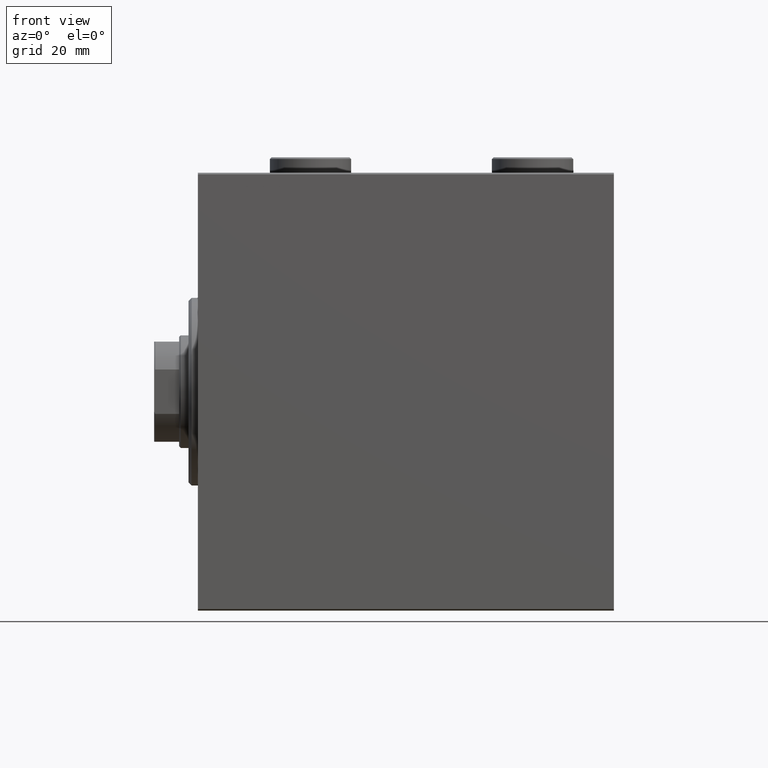
[diagram: clean part render]
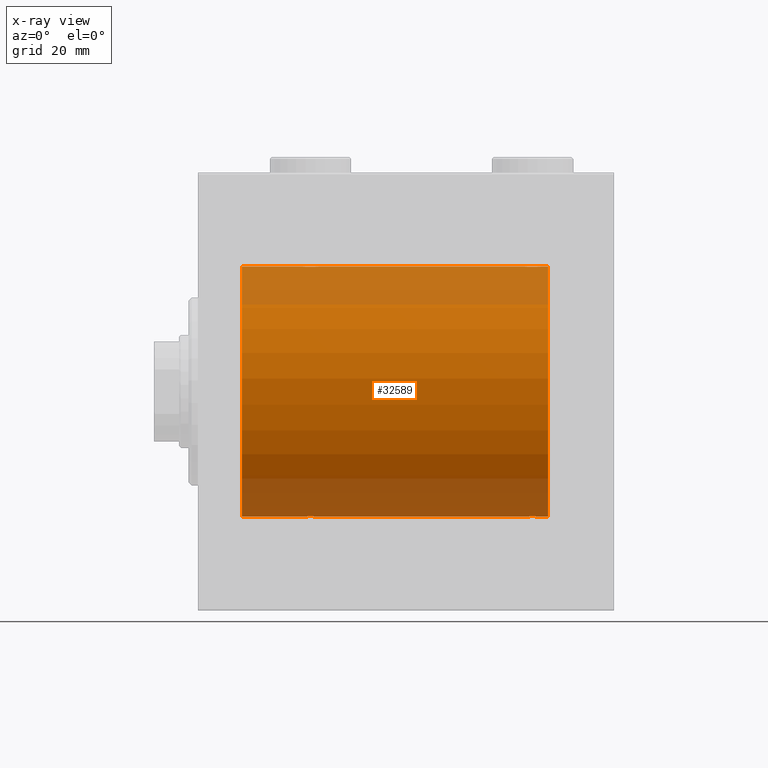
[diagram: x-ray — body ghosted, one internal face saturated and labeled with its STEP entity id]
A machine part, front view, then the same camera in x-ray: the body is ghosted and one INTERNAL B-rep face — a face not visible from any outside direction — is saturated and labeled: STEP entity #32589.
In plain terms, the highlighted cylindrical surface (partial cylindrical patch) has radius 40 mm, axis along (-1, -0, -0).
Its self-contained STEP definition (entity closure, byte-faithful):
#83 = CARTESIAN_POINT ( 'NONE',  ( 107.3952248345357816, -2.980272303779556431, -39.88883864243169342 ) ) ;
#178 = VECTOR ( 'NONE', #28271, 1000.000000000000000 ) ;
#187 = CARTESIAN_POINT ( 'NONE',  ( 35.79958713980801832, -2.999840380514748883, 39.88735335562824247 ) ) ;
#273 = VERTEX_POINT ( 'NONE', #11711 ) ;
#306 = CARTESIAN_POINT ( 'NONE',  ( 105.1730981536758804, -2.387636253591827185, -39.92882473497732576 ) ) ;
#407 = CARTESIAN_POINT ( 'NONE',  ( 34.01538552187719233, -2.258217541132905293, 39.93644519243653690 ) ) ;
#811 = CARTESIAN_POINT ( 'NONE',  ( 33.61748319088535908, -1.833695109615714802, -39.95828327492363741 ) ) ;
#907 = ORIENTED_EDGE ( 'NONE', *, *, #32072, .T. ) ;
#1038 = CARTESIAN_POINT ( 'NONE',  ( 112.0000000000000000, 0.000000000000000000, 40.00000000000000000 ) ) ;
#1043 = CARTESIAN_POINT ( 'NONE',  ( 33.39811271871507614, -1.506322235190781456, -39.97196309111974699 ) ) ;
#1135 = CARTESIAN_POINT ( 'NONE',  ( 39.00000000000000000, 4.898587181755365697E-15, -40.00000000000000000 ) ) ;
#1503 = CARTESIAN_POINT ( 'NONE',  ( 38.84665273013138176, -0.9668189122103333366, -39.98872185468385254 ) ) ;
#1559 = CARTESIAN_POINT ( 'NONE',  ( 38.92026174991646315, -0.7903958539027399199, 39.99381900068935636 ) ) ;
#1792 = CARTESIAN_POINT ( 'NONE',  ( 38.60188728128492386, -1.506322235190783232, 39.97196309111974699 ) ) ;
#1964 = CARTESIAN_POINT ( 'NONE',  ( 109.6043359991208206, -1.502129635934005503, -39.97212271185185983 ) ) ;
#2068 = VECTOR ( 'NONE', #15136, 1000.000000000000000 ) ;
#2075 = CARTESIAN_POINT ( 'NONE',  ( 112.0000000000000000, 4.898587196589413026E-15, -40.00000000000000000 ) ) ;
#2087 = VERTEX_POINT ( 'NONE', #44082 ) ;
#2292 = CARTESIAN_POINT ( 'NONE',  ( 109.2582967032050192, -1.984537326394317569, 39.95097977400578060 ) ) ;
#2517 = CARTESIAN_POINT ( 'NONE',  ( 105.6677573113413615, -2.695129988695747603, 39.90917164320281785 ) ) ;
#2738 = CARTESIAN_POINT ( 'NONE',  ( 105.1695517717759998, -2.384933850258125876, 39.92898715513240404 ) ) ;
#3073 = DIRECTION ( 'NONE',  ( -1.000000000000000000, -0.000000000000000000, -0.000000000000000000 ) ) ;
#3286 = DIRECTION ( 'NONE',  ( -1.000000000000000000, -0.000000000000000000, -0.000000000000000000 ) ) ;
#3298 = CARTESIAN_POINT ( 'NONE',  ( 112.0000000000000000, 0.000000000000000000, 40.00000000000000000 ) ) ;
#3664 = CARTESIAN_POINT ( 'NONE',  ( 35.03061658105535514, -2.845855236045346626, 39.89870693240651889 ) ) ;
#3787 = CARTESIAN_POINT ( 'NONE',  ( 107.7786952341574249, -2.903766417398243149, -39.89448096967571189 ) ) ;
#4013 = CARTESIAN_POINT ( 'NONE',  ( 107.9693834189446733, -2.845855236045348402, -39.89870693240651889 ) ) ;
#4287 = CARTESIAN_POINT ( 'NONE',  ( 37.50443082913466242, -2.602909538701748016, -39.91537030566259148 ) ) ;
#4339 = CARTESIAN_POINT ( 'NONE',  ( 37.32853644746295885, -2.696981015661930936, 39.90904630908465833 ) ) ;
#4407 = CARTESIAN_POINT ( 'NONE',  ( 39.00000000000000000, -1.886242593979369380E-15, 40.00000000000000000 ) ) ;
#4531 = CARTESIAN_POINT ( 'NONE',  ( 36.77869523415743913, -2.903766417398228938, -39.89448096967571900 ) ) ;
#4760 = CARTESIAN_POINT ( 'NONE',  ( 32.99999999999998579, -0.3964922677423637909, -39.99999999999998579 ) ) ;
#4809 = CARTESIAN_POINT ( 'NONE',  ( 39.00000000000000000, -1.886242593979369380E-15, 40.00000000000000000 ) ) ;
#4981 = CARTESIAN_POINT ( 'NONE',  ( 33.74170329679496660, -1.984537326394300250, -39.95097977400577349 ) ) ;
#5457 = CARTESIAN_POINT ( 'NONE',  ( 109.9042517365135438, -0.7773146824711011371, -39.99291453282344122 ) ) ;
#5510 = CARTESIAN_POINT ( 'NONE',  ( 38.69537007708435539, -1.331594428131646080, 39.97823692017209396 ) ) ;
#5609 = EDGE_CURVE ( 'NONE', #2087, #17321, #43744, .T. ) ;
#5762 = CARTESIAN_POINT ( 'NONE',  ( 104.0000000000000142, -1.483492375313373751E-23, 40.00000000000000000 ) ) ;
#6063 = DIRECTION ( 'NONE',  ( -1.000000000000000000, 0.000000000000000000, 0.000000000000000000 ) ) ;
#6223 = CARTESIAN_POINT ( 'NONE',  ( 106.0306165810553409, -2.845855236045354619, 39.89870693240651178 ) ) ;
#6345 = EDGE_CURVE ( 'NONE', #273, #8951, #30739, .T. ) ;
#6440 = CARTESIAN_POINT ( 'NONE',  ( 104.0957482634864846, -0.7773146824711071323, 39.99291453282344833 ) ) ;
#6624 = VERTEX_POINT ( 'NONE', #34378 ) ;
#6810 = CARTESIAN_POINT ( 'NONE',  ( 108.3322426886586669, -2.695129988695742718, -39.90917164320281074 ) ) ;
#7030 = CARTESIAN_POINT ( 'NONE',  ( 105.4991153159596564, -2.604941918888321606, -39.91523680494982784 ) ) ;
#7250 = CARTESIAN_POINT ( 'NONE',  ( 108.9846144781227935, -2.258217541132901296, -39.93644519243653690 ) ) ;
#7358 = CARTESIAN_POINT ( 'NONE',  ( 33.01898122889073051, -0.3904143323715975056, 39.99856256910221219 ) ) ;
#7985 = CARTESIAN_POINT ( 'NONE',  ( 37.83044822822401443, -2.384933850258100119, -39.92898715513241115 ) ) ;
#8951 = VERTEX_POINT ( 'NONE', #27532 ) ;
#8982 = CARTESIAN_POINT ( 'NONE',  ( 38.99999999999999289, -0.3964922677423670661, 40.00000000000000711 ) ) ;
#9017 = CARTESIAN_POINT ( 'NONE',  ( 108.8269018463241053, -2.387636253591832514, 39.92882473497732576 ) ) ;
#9455 = CARTESIAN_POINT ( 'NONE',  ( 104.0000000000000142, -0.1957844162750575212, 39.99999999999999289 ) ) ;
#9555 = B_SPLINE_CURVE_WITH_KNOTS ( 'NONE', 3,
 ( #35934, #40556, #33173, #39856, #1503, #32714, #29944, #29705, #25989, #11916, #7985, #4287, #15364, #43090, #4531, #22304, #29235, #43550, #36404, #25755, #12371, #22074, #15604, #18608, #26455, #4981, #811, #1043, #36168, #15139, #4760, #43786 ),
 .UNSPECIFIED., .F., .F.,
 ( 4, 2, 2, 2, 2, 2, 2, 2, 2, 2, 2, 2, 2, 2, 2, 4 ),
 ( 0.009382660366305110508, 0.009968941372944146312, 0.01055522237958318212, 0.01114150338622221792, 0.01172778439286125372, 0.01231406539950028953, 0.01290034640613932533, 0.01348662741277836113, 0.01407290841941739694, 0.01465918942605643274, 0.01524547043269546855, 0.01583175143933450435, 0.01641803244597354189, 0.01700431345261257596, 0.01759059445925161003, 0.01876315647252968163 ),
 .UNSPECIFIED. ) ;
#9684 = CARTESIAN_POINT ( 'NONE',  ( 109.6018872812849310, -1.506322235190793668, 39.97196309111975410 ) ) ;
#9916 = CARTESIAN_POINT ( 'NONE',  ( 109.9202617499164916, -0.7903958539027468033, 39.99381900068937057 ) ) ;
#10269 = CARTESIAN_POINT ( 'NONE',  ( 104.3981127187150690, -1.506322235190790559, -39.97196309111975410 ) ) ;
#10838 = B_SPLINE_CURVE_WITH_KNOTS ( 'NONE', 3,
 ( #5762, #9455, #37862, #6440, #27229, #44787, #40650, #33717, #23531, #27459, #2738, #37630, #2517, #6223, #12462, #26553, #16604, #37190, #16823, #41313, #16142, #30262, #41544, #9017, #19840, #2292, #30497, #9684, #20295, #9916, #23988, #20514 ),
 .UNSPECIFIED., .F., .F.,
 ( 4, 2, 2, 2, 2, 2, 2, 2, 2, 2, 2, 2, 2, 2, 2, 4 ),
 ( 0.009382660366305098365, 0.009968941372944135904, 0.01055522237958317344, 0.01114150338622220925, 0.01172778439286124678, 0.01231406539950028432, 0.01290034640613932013, 0.01348662741277835767, 0.01407290841941739520, 0.01465918942605643274, 0.01524547043269547028, 0.01583175143933450435, 0.01641803244597354189, 0.01700431345261257943, 0.01759059445925161697, 0.01876315647252969204 ),
 .UNSPECIFIED. ) ;
#11050 = CARTESIAN_POINT ( 'NONE',  ( 34.16955177177597847, -2.384933850258108556, 39.92898715513240404 ) ) ;
#11280 = CARTESIAN_POINT ( 'NONE',  ( 32.99999999999997158, -0.1957844162750553285, 40.00000000000000000 ) ) ;
#11585 = ORIENTED_EDGE ( 'NONE', *, *, #12822, .F. ) ;
#11711 = CARTESIAN_POINT ( 'NONE',  ( 112.0000000000000000, 4.898587196589413026E-15, -40.00000000000000000 ) ) ;
#11857 = CARTESIAN_POINT ( 'NONE',  ( 112.0000000000000000, 0.000000000000000000, 40.00000000000000000 ) ) ;
#11913 = LINE ( 'NONE', #1038, #2068 ) ;
#11916 = CARTESIAN_POINT ( 'NONE',  ( 37.98461447812278635, -2.258217541132897743, -39.93644519243654400 ) ) ;
#12242 = ORIENTED_EDGE ( 'NONE', *, *, #31346, .T. ) ;
#12371 = CARTESIAN_POINT ( 'NONE',  ( 35.03510674146484405, -2.847401743820449305, -39.89859630624607689 ) ) ;
#12462 = CARTESIAN_POINT ( 'NONE',  ( 106.2213047658425893, -2.903766417398247590, 39.89448096967571189 ) ) ;
#12822 = EDGE_CURVE ( 'NONE', #2087, #33935, #24311, .T. ) ;
#12884 = LINE ( 'NONE', #30685, #32042 ) ;
#13266 = CARTESIAN_POINT ( 'NONE',  ( 110.0000000000000142, 4.898587181754971267E-15, -40.00000000000000000 ) ) ;
#13414 = VECTOR ( 'NONE', #33040, 1000.000000000000000 ) ;
#13945 = CARTESIAN_POINT ( 'NONE',  ( 108.8304482282240144, -2.384933850258110777, -39.92898715513239694 ) ) ;
#14353 = CARTESIAN_POINT ( 'NONE',  ( 112.0000000000000000, 0.000000000000000000, 0.000000000000000000 ) ) ;
#14501 = CARTESIAN_POINT ( 'NONE',  ( 37.50088468404035069, -2.604941918888315833, 39.91523680494983495 ) ) ;
#15136 = DIRECTION ( 'NONE',  ( -1.000000000000000000, -0.000000000000000000, -0.000000000000000000 ) ) ;
#15139 = CARTESIAN_POINT ( 'NONE',  ( 33.07973825008353685, -0.7903958539027382546, -39.99381900068937767 ) ) ;
#15339 = CARTESIAN_POINT ( 'NONE',  ( 112.0000000000000000, 0.000000000000000000, 0.000000000000000000 ) ) ;
#15364 = CARTESIAN_POINT ( 'NONE',  ( 37.33224268865864559, -2.695129988695729839, -39.90917164320280364 ) ) ;
#15417 = CARTESIAN_POINT ( 'NONE',  ( 38.38251680911464803, -1.833695109615719021, 39.95828327492363741 ) ) ;
#15573 = EDGE_CURVE ( 'NONE', #24918, #33935, #34536, .T. ) ;
#15604 = CARTESIAN_POINT ( 'NONE',  ( 34.49911531595966352, -2.604941918888306507, -39.91523680494982784 ) ) ;
#15757 = VERTEX_POINT ( 'NONE', #1135 ) ;
#15900 = ORIENTED_EDGE ( 'NONE', *, *, #30459, .F. ) ;
#16053 = CARTESIAN_POINT ( 'NONE',  ( 109.3850760091535363, -1.830402106103518944, -39.95843610133493939 ) ) ;
#16142 = CARTESIAN_POINT ( 'NONE',  ( 107.9648932585351417, -2.847401743820471065, 39.89859630624608400 ) ) ;
#16604 = CARTESIAN_POINT ( 'NONE',  ( 106.7995871398080254, -2.999840380514755100, 39.88735335562824957 ) ) ;
#16756 = ORIENTED_EDGE ( 'NONE', *, *, #41079, .T. ) ;
#16823 = CARTESIAN_POINT ( 'NONE',  ( 107.3910969250933505, -2.980812880639910123, 39.88879797994688658 ) ) ;
#17199 = CARTESIAN_POINT ( 'NONE',  ( 106.0351067414648867, -2.847401743820467512, -39.89859630624608400 ) ) ;
#17321 = VERTEX_POINT ( 'NONE', #4407 ) ;
#17640 = CARTESIAN_POINT ( 'NONE',  ( 104.7417032967950377, -1.984537326394312906, -39.95097977400579481 ) ) ;
#17753 = CARTESIAN_POINT ( 'NONE',  ( 35.22130476584258219, -2.903766417398241373, 39.89448096967571189 ) ) ;
#17978 = CARTESIAN_POINT ( 'NONE',  ( 36.77455678826341057, -2.904869018727228358, 39.89440043036668015 ) ) ;
#18608 = CARTESIAN_POINT ( 'NONE',  ( 34.17309815367588754, -2.387636253591812974, -39.92882473497732576 ) ) ;
#19205 = VECTOR ( 'NONE', #23560, 1000.000000000000000 ) ;
#19535 = CARTESIAN_POINT ( 'NONE',  ( 109.6972134058088670, -1.327859336864152029, -39.97836169682016561 ) ) ;
#19562 = VERTEX_POINT ( 'NONE', #11857 ) ;
#19669 = VERTEX_POINT ( 'NONE', #39734 ) ;
#19840 = CARTESIAN_POINT ( 'NONE',  ( 108.9813627951423456, -2.261082456166716881, 39.93628274425758207 ) ) ;
#20131 = CARTESIAN_POINT ( 'NONE',  ( 13.99999999999999822, 0.000000000000000000, 0.000000000000000000 ) ) ;
#20295 = CARTESIAN_POINT ( 'NONE',  ( 109.6953700770843767, -1.331594428131652963, 39.97823692017208685 ) ) ;
#20376 = EDGE_CURVE ( 'NONE', #45079, #17321, #11913, .T. ) ;
#20514 = CARTESIAN_POINT ( 'NONE',  ( 110.0000000000000142, -2.794909241144302331E-15, 40.00000000000000000 ) ) ;
#20525 = VERTEX_POINT ( 'NONE', #29648 ) ;
#20886 = CARTESIAN_POINT ( 'NONE',  ( 104.6174831908853804, -1.833695109615725238, -39.95828327492363741 ) ) ;
#21103 = CARTESIAN_POINT ( 'NONE',  ( 112.0000000000000000, 4.898587196589413026E-15, -40.00000000000000000 ) ) ;
#21334 = CARTESIAN_POINT ( 'NONE',  ( 108.5044308291346908, -2.602909538701760006, -39.91537030566259148 ) ) ;
#21442 = CARTESIAN_POINT ( 'NONE',  ( 36.19560531073086196, -3.000157693440645090, 39.88732948994960026 ) ) ;
#21582 = ORIENTED_EDGE ( 'NONE', *, *, #38213, .T. ) ;
#21677 = CARTESIAN_POINT ( 'NONE',  ( 34.66775731134134020, -2.695129988695739609, 39.90917164320281074 ) ) ;
#22074 = CARTESIAN_POINT ( 'NONE',  ( 34.67146355253704826, -2.696981015661917613, -39.90904630908468675 ) ) ;
#22236 = ORIENTED_EDGE ( 'NONE', *, *, #20376, .F. ) ;
#22304 = CARTESIAN_POINT ( 'NONE',  ( 36.39522483453576029, -2.980272303779541332, -39.88883864243169342 ) ) ;
#22715 = AXIS2_PLACEMENT_3D ( 'NONE', #20131, #23600, #45080 ) ;
#23531 = CARTESIAN_POINT ( 'NONE',  ( 104.7390238300526022, -1.981471132463181295, 39.95113231465138881 ) ) ;
#23560 = DIRECTION ( 'NONE',  ( -1.000000000000000000, -0.000000000000000000, -0.000000000000000000 ) ) ;
#23600 = DIRECTION ( 'NONE',  ( -1.000000000000000000, 0.000000000000000000, 0.000000000000000000 ) ) ;
#23831 = EDGE_CURVE ( 'NONE', #273, #19562, #29474, .T. ) ;
#23988 = CARTESIAN_POINT ( 'NONE',  ( 110.0000000000000000, -0.3964922677423690645, 40.00000000000000000 ) ) ;
#24117 = CARTESIAN_POINT ( 'NONE',  ( 106.6089030749067064, -2.980812880639904794, -39.88879797994688658 ) ) ;
#24311 = LINE ( 'NONE', #3298, #25145 ) ;
#24413 = ORIENTED_EDGE ( 'NONE', *, *, #5609, .T. ) ;
#24875 = CARTESIAN_POINT ( 'NONE',  ( 104.0000000000000142, -1.483492375313373751E-23, 40.00000000000000000 ) ) ;
#24918 = VERTEX_POINT ( 'NONE', #32635 ) ;
#25145 = VECTOR ( 'NONE', #3073, 1000.000000000000000 ) ;
#25362 = CARTESIAN_POINT ( 'NONE',  ( 33.09574826348647036, -0.7773146824711031355, 39.99291453282343412 ) ) ;
#25755 = CARTESIAN_POINT ( 'NONE',  ( 35.22544321173658943, -2.904869018727217700, -39.89440043036668726 ) ) ;
#25782 = ORIENTED_EDGE ( 'NONE', *, *, #32257, .T. ) ;
#25808 = CARTESIAN_POINT ( 'NONE',  ( 33.61492399084646365, -1.830402106103518056, 39.95843610133494650 ) ) ;
#25989 = CARTESIAN_POINT ( 'NONE',  ( 38.26097616994740491, -1.981471132463162643, -39.95113231465139592 ) ) ;
#26455 = CARTESIAN_POINT ( 'NONE',  ( 34.01863720485770415, -2.261082456166700005, -39.93628274425758917 ) ) ;
#26553 = CARTESIAN_POINT ( 'NONE',  ( 106.6047751654642468, -2.980272303779561316, 39.88883864243167920 ) ) ;
#27229 = CARTESIAN_POINT ( 'NONE',  ( 104.1533472698686182, -0.9668189122103458821, 39.98872185468384544 ) ) ;
#27373 = CARTESIAN_POINT ( 'NONE',  ( 109.8466527301314102, -0.9668189122103407751, -39.98872185468385254 ) ) ;
#27459 = CARTESIAN_POINT ( 'NONE',  ( 105.0153855218772065, -2.258217541132916395, 39.93644519243652979 ) ) ;
#27532 = CARTESIAN_POINT ( 'NONE',  ( 110.0000000000000142, 4.898587181754971267E-15, -40.00000000000000000 ) ) ;
#27817 = CARTESIAN_POINT ( 'NONE',  ( 106.8043946892691736, -3.000157693440646867, -39.88732948994960736 ) ) ;
#28271 = DIRECTION ( 'NONE',  ( -1.000000000000000000, -0.000000000000000000, -0.000000000000000000 ) ) ;
#28590 = CARTESIAN_POINT ( 'NONE',  ( 37.82690184632411956, -2.387636253591820523, 39.92882473497731866 ) ) ;
#29104 = EDGE_LOOP ( 'NONE', ( #45083, #42651, #25782, #16756, #907, #12242, #42837, #11585, #24413, #22236, #21582, #15900 ) ) ;
#29235 = CARTESIAN_POINT ( 'NONE',  ( 36.20041286019198168, -2.999840380514735116, -39.88735335562824957 ) ) ;
#29285 = CARTESIAN_POINT ( 'NONE',  ( 33.30278659419118270, -1.327859336864149586, 39.97836169682017982 ) ) ;
#29474 = CIRCLE ( 'NONE', #35379, 40.00000000000000000 ) ;
#29648 = CARTESIAN_POINT ( 'NONE',  ( 110.0000000000000142, -2.794909241144302331E-15, 40.00000000000000000 ) ) ;
#29705 = CARTESIAN_POINT ( 'NONE',  ( 38.38507600915353635, -1.830402106103512505, -39.95843610133493229 ) ) ;
#29944 = CARTESIAN_POINT ( 'NONE',  ( 38.60433599912083480, -1.502129635934000396, -39.97212271185185273 ) ) ;
#29994 = CARTESIAN_POINT ( 'NONE',  ( 38.25829670320501918, -1.984537326394312462, 39.95097977400578060 ) ) ;
#30262 = CARTESIAN_POINT ( 'NONE',  ( 108.3285364474629660, -2.696981015661940262, 39.90904630908467254 ) ) ;
#30459 = EDGE_CURVE ( 'NONE', #19562, #20525, #36275, .T. ) ;
#30497 = CARTESIAN_POINT ( 'NONE',  ( 109.3825168091146622, -1.833695109615728125, 39.95828327492363741 ) ) ;
#30685 = CARTESIAN_POINT ( 'NONE',  ( 112.0000000000000000, 4.898587196589413026E-15, -40.00000000000000000 ) ) ;
#30739 = LINE ( 'NONE', #2075, #19205 ) ;
#30840 = CARTESIAN_POINT ( 'NONE',  ( 109.9810187711092908, -0.3904143323715949521, -39.99856256910221219 ) ) ;
#31083 = B_SPLINE_CURVE_WITH_KNOTS ( 'NONE', 3,
 ( #13266, #37097, #30840, #5457, #27373, #19535, #1964, #16053, #44478, #7250, #13945, #21334, #6810, #4013, #3787, #83, #31755, #27817, #24117, #35208, #17199, #31311, #7030, #306, #45379, #17640, #20886, #10269, #41896, #35433, #38448, #32197 ),
 .UNSPECIFIED., .F., .F.,
 ( 4, 2, 2, 2, 2, 2, 2, 2, 2, 2, 2, 2, 2, 2, 2, 4 ),
 ( 0.009382660366305122651, 0.009968941372944160190, 0.01055522237958319946, 0.01114150338622223700, 0.01172778439286127454, 0.01231406539950031208, 0.01290034640613934962, 0.01348662741277838542, 0.01407290841941742296, 0.01465918942605646050, 0.01524547043269549804, 0.01583175143933453557, 0.01641803244597356964, 0.01700431345261260718, 0.01759059445925164472, 0.01876315647252971980 ),
 .UNSPECIFIED. ) ;
#31311 = CARTESIAN_POINT ( 'NONE',  ( 105.6714635525370198, -2.696981015661934933, -39.90904630908467254 ) ) ;
#31346 = EDGE_CURVE ( 'NONE', #19669, #24918, #35202, .T. ) ;
#31755 = CARTESIAN_POINT ( 'NONE',  ( 107.2004128601920172, -2.999840380514750660, -39.88735335562826378 ) ) ;
#31865 = CARTESIAN_POINT ( 'NONE',  ( 35.60477516546423260, -2.980272303779554655, 39.88883864243167920 ) ) ;
#32042 = VECTOR ( 'NONE', #33919, 1000.000000000000000 ) ;
#32072 = EDGE_CURVE ( 'NONE', #15757, #19669, #9555, .T. ) ;
#32085 = CARTESIAN_POINT ( 'NONE',  ( 36.96489325853514174, -2.847401743820462183, 39.89859630624607689 ) ) ;
#32197 = CARTESIAN_POINT ( 'NONE',  ( 104.0000000000000142, -4.251671907122233418E-15, -40.00000000000000000 ) ) ;
#32257 = EDGE_CURVE ( 'NONE', #8951, #6624, #31083, .T. ) ;
#32589 = ADVANCED_FACE ( 'NONE', ( #42523 ), #34947, .F. ) ;
#32635 = CARTESIAN_POINT ( 'NONE',  ( 13.99999999999999822, 4.898587196589413026E-15, -40.00000000000000000 ) ) ;
#32714 = CARTESIAN_POINT ( 'NONE',  ( 38.69721340580881730, -1.327859336864144035, -39.97836169682019403 ) ) ;
#33040 = DIRECTION ( 'NONE',  ( -1.000000000000000000, -0.000000000000000000, -0.000000000000000000 ) ) ;
#33173 = CARTESIAN_POINT ( 'NONE',  ( 38.98101877110926239, -0.3904143323715931757, -39.99856256910221219 ) ) ;
#33717 = CARTESIAN_POINT ( 'NONE',  ( 104.6149239908464921, -1.830402106103529380, 39.95843610133493229 ) ) ;
#33919 = DIRECTION ( 'NONE',  ( -1.000000000000000000, -0.000000000000000000, -0.000000000000000000 ) ) ;
#33935 = VERTEX_POINT ( 'NONE', #36069 ) ;
#34378 = CARTESIAN_POINT ( 'NONE',  ( 104.0000000000000142, -4.251671907122233418E-15, -40.00000000000000000 ) ) ;
#34536 = CIRCLE ( 'NONE', #22715, 40.00000000000000000 ) ;
#34947 = CYLINDRICAL_SURFACE ( 'NONE', #36364, 40.00000000000000000 ) ;
#35202 = LINE ( 'NONE', #21103, #178 ) ;
#35208 = CARTESIAN_POINT ( 'NONE',  ( 106.2254432117366036, -2.904869018727228802, -39.89440043036668726 ) ) ;
#35310 = CARTESIAN_POINT ( 'NONE',  ( 34.49556917086532337, -2.602909538701755565, 39.91537030566259148 ) ) ;
#35379 = AXIS2_PLACEMENT_3D ( 'NONE', #15339, #6063, #38145 ) ;
#35433 = CARTESIAN_POINT ( 'NONE',  ( 104.0797382500835369, -0.7903958539027451380, -39.99381900068937057 ) ) ;
#35934 = CARTESIAN_POINT ( 'NONE',  ( 39.00000000000000000, 4.898587181755365697E-15, -40.00000000000000000 ) ) ;
#35984 = CARTESIAN_POINT ( 'NONE',  ( 36.39109692509333627, -2.980812880639903906, 39.88879797994688658 ) ) ;
#36069 = CARTESIAN_POINT ( 'NONE',  ( 13.99999999999999822, 0.000000000000000000, 40.00000000000000000 ) ) ;
#36168 = CARTESIAN_POINT ( 'NONE',  ( 33.30462992291564461, -1.331594428131640528, -39.97823692017208685 ) ) ;
#36275 = LINE ( 'NONE', #39730, #13414 ) ;
#36364 = AXIS2_PLACEMENT_3D ( 'NONE', #14353, #3286, #41848 ) ;
#36404 = CARTESIAN_POINT ( 'NONE',  ( 35.60890307490667794, -2.980812880639892359, -39.88879797994688658 ) ) ;
#37097 = CARTESIAN_POINT ( 'NONE',  ( 110.0000000000000000, -0.1957844162750523587, -40.00000000000000711 ) ) ;
#37190 = CARTESIAN_POINT ( 'NONE',  ( 107.1956053107308406, -3.000157693440651752, 39.88732948994960026 ) ) ;
#37630 = CARTESIAN_POINT ( 'NONE',  ( 105.4955691708653518, -2.602909538701771996, 39.91537030566259148 ) ) ;
#37862 = CARTESIAN_POINT ( 'NONE',  ( 104.0189812288907376, -0.3904143323716007807, 39.99856256910221219 ) ) ;
#38145 = DIRECTION ( 'NONE',  ( 0.000000000000000000, 0.000000000000000000, 1.000000000000000000 ) ) ;
#38213 = EDGE_CURVE ( 'NONE', #45079, #20525, #10838, .T. ) ;
#38448 = CARTESIAN_POINT ( 'NONE',  ( 104.0000000000000284, -0.3964922677423729502, -40.00000000000000000 ) ) ;
#39228 = CARTESIAN_POINT ( 'NONE',  ( 33.73902383005257377, -1.981471132463168638, 39.95113231465138881 ) ) ;
#39455 = CARTESIAN_POINT ( 'NONE',  ( 33.15334726986859692, -0.9668189122103382216, 39.98872185468385254 ) ) ;
#39730 = CARTESIAN_POINT ( 'NONE',  ( 112.0000000000000000, 0.000000000000000000, 40.00000000000000000 ) ) ;
#39734 = CARTESIAN_POINT ( 'NONE',  ( 32.99999999999999289, 4.605585004310627937E-15, -40.00000000000000000 ) ) ;
#39856 = CARTESIAN_POINT ( 'NONE',  ( 38.90425173651351543, -0.7773146824710984726, -39.99291453282344122 ) ) ;
#39907 = CARTESIAN_POINT ( 'NONE',  ( 32.99999999999999289, -1.483452932268112700E-23, 40.00000000000000000 ) ) ;
#40556 = CARTESIAN_POINT ( 'NONE',  ( 38.99999999999999289, -0.1957844162750510819, -40.00000000000000711 ) ) ;
#40650 = CARTESIAN_POINT ( 'NONE',  ( 104.3956640008791794, -1.502129635934016383, 39.97212271185185983 ) ) ;
#41055 = CARTESIAN_POINT ( 'NONE',  ( 37.98136279514229585, -2.261082456166712440, 39.93628274425758207 ) ) ;
#41079 = EDGE_CURVE ( 'NONE', #6624, #15757, #12884, .T. ) ;
#41313 = CARTESIAN_POINT ( 'NONE',  ( 107.7745567882634248, -2.904869018727233687, 39.89440043036668726 ) ) ;
#41544 = CARTESIAN_POINT ( 'NONE',  ( 108.5008846840403436, -2.604941918888326935, 39.91523680494982784 ) ) ;
#41848 = DIRECTION ( 'NONE',  ( 0.000000000000000000, 0.000000000000000000, 1.000000000000000000 ) ) ;
#41896 = CARTESIAN_POINT ( 'NONE',  ( 104.3046299229156233, -1.331594428131650965, -39.97823692017208685 ) ) ;
#42523 = FACE_OUTER_BOUND ( 'NONE', #29104, .T. ) ;
#42651 = ORIENTED_EDGE ( 'NONE', *, *, #6345, .T. ) ;
#42837 = ORIENTED_EDGE ( 'NONE', *, *, #15573, .T. ) ;
#43090 = CARTESIAN_POINT ( 'NONE',  ( 36.96938341894465907, -2.845855236045336856, -39.89870693240651178 ) ) ;
#43362 = CARTESIAN_POINT ( 'NONE',  ( 33.39566400087915810, -1.502129635934004170, 39.97212271185186694 ) ) ;
#43550 = CARTESIAN_POINT ( 'NONE',  ( 35.80439468926913804, -3.000157693440631324, -39.88732948994960026 ) ) ;
#43744 = B_SPLINE_CURVE_WITH_KNOTS ( 'NONE', 3,
 ( #39907, #11280, #7358, #25362, #39455, #29285, #43362, #25808, #39228, #407, #11050, #35310, #21677, #3664, #17753, #31865, #187, #21442, #35984, #17978, #32085, #4339, #14501, #28590, #41055, #29994, #15417, #1792, #5510, #1559, #8982, #4809 ),
 .UNSPECIFIED., .F., .F.,
 ( 4, 2, 2, 2, 2, 2, 2, 2, 2, 2, 2, 2, 2, 2, 2, 4 ),
 ( 0.009382660366305081018, 0.009968941372944116822, 0.01055522237958315263, 0.01114150338622219016, 0.01172778439286122597, 0.01231406539950026177, 0.01290034640613929931, 0.01348662741277833511, 0.01407290841941737092, 0.01465918942605640846, 0.01524547043269544253, 0.01583175143933448006, 0.01641803244597351413, 0.01700431345261255167, 0.01759059445925158921, 0.01876315647252966082 ),
 .UNSPECIFIED. ) ;
#43786 = CARTESIAN_POINT ( 'NONE',  ( 32.99999999999999289, 4.605585004310627937E-15, -40.00000000000000000 ) ) ;
#44082 = CARTESIAN_POINT ( 'NONE',  ( 32.99999999999999289, -1.483452932268112700E-23, 40.00000000000000000 ) ) ;
#44478 = CARTESIAN_POINT ( 'NONE',  ( 109.2609761699474262, -1.981471132463164864, -39.95113231465139592 ) ) ;
#44787 = CARTESIAN_POINT ( 'NONE',  ( 104.3027865941912182, -1.327859336864157358, 39.97836169682016561 ) ) ;
#45079 = VERTEX_POINT ( 'NONE', #24875 ) ;
#45080 = DIRECTION ( 'NONE',  ( 0.000000000000000000, 0.000000000000000000, 1.000000000000000000 ) ) ;
#45083 = ORIENTED_EDGE ( 'NONE', *, *, #23831, .F. ) ;
#45379 = CARTESIAN_POINT ( 'NONE',  ( 105.0186372048576970, -2.261082456166713328, -39.93628274425758207 ) ) ;